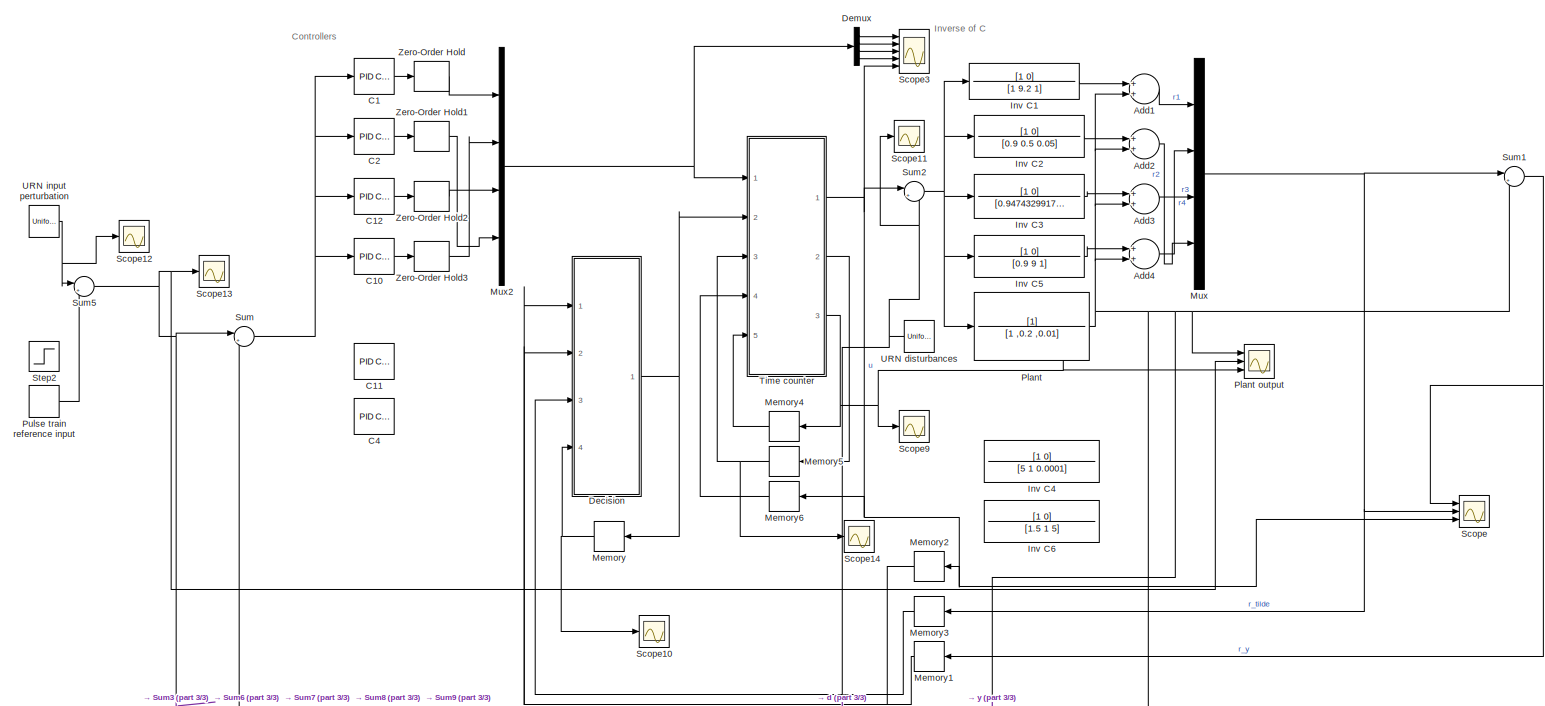
[diagram: root canvas - part 1/3, full width, top band]
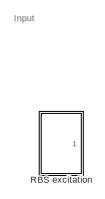
[diagram: root canvas - part 2/3, top left region]
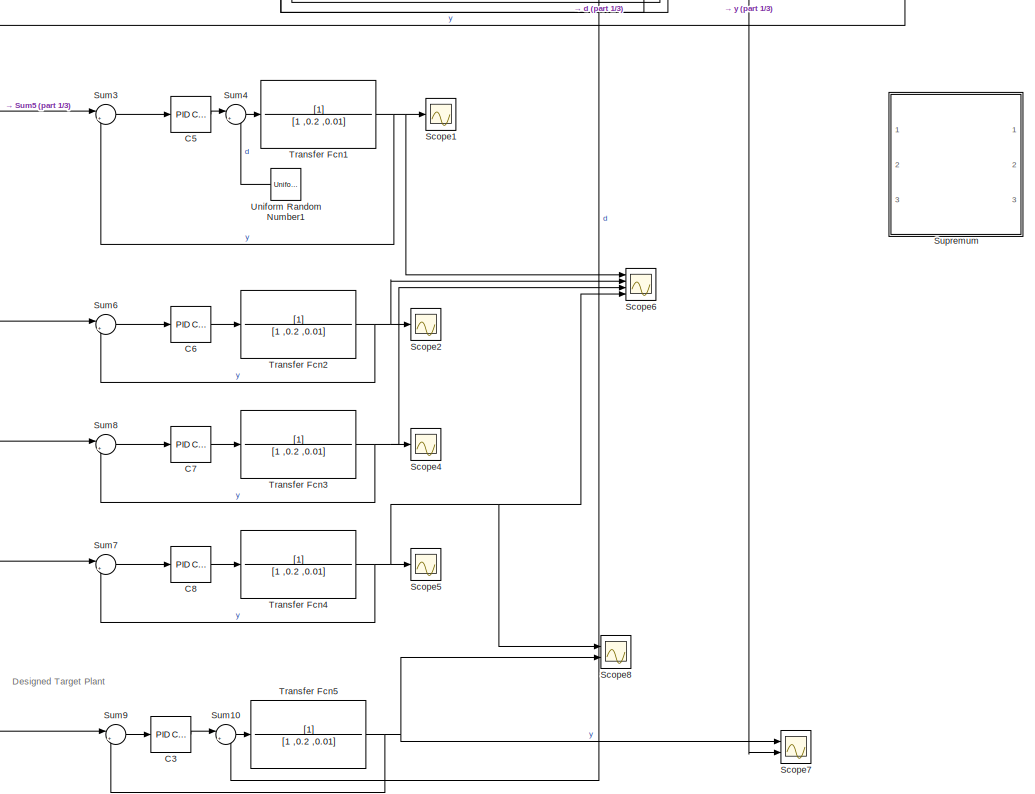
[diagram: root canvas - part 3/3, bottom center region]
MODEL slx_1310ebeed36a
KIND model
CONFIG AbsTol = auto
CONFIG EnableMultiTasking = off
CONFIG FixedStep = auto
CONFIG MaxStep = auto
CONFIG MinStep = auto
CONFIG RelTol = 1e-3
CONFIG SampleTimeConstraint = Unconstrained
CONFIG Solver = ode45
CONFIG SolverName = ode45
CONFIG StartTime = 0.0
CONFIG StopTime = 2000
BLOCK [Sum] Add1
  InputSameDT = off
  OutDataTypeStr = Inherit: Inherit via internal rule
  Ports = [2, 1]
  SaturateOnIntegerOverflow = off
BLOCK [Sum] Add2
  InputSameDT = off
  OutDataTypeStr = Inherit: Inherit via internal rule
  Ports = [2, 1]
  SaturateOnIntegerOverflow = off
BLOCK [Sum] Add3
  InputSameDT = off
  OutDataTypeStr = Inherit: Inherit via internal rule
  Ports = [2, 1]
  SaturateOnIntegerOverflow = off
BLOCK [Sum] Add4
  InputSameDT = off
  OutDataTypeStr = Inherit: Inherit via internal rule
  Ports = [2, 1]
  SaturateOnIntegerOverflow = off
BLOCK [Reference] C1  REF=simulink/Continuous/PID Controller
  Ports = [1, 1]
  SourceBlock = simulink/Continuous/PID Controller
  SourceProductBaseCode = SL
  SourceProductName = Simulink
  SourceType = PID 1dof
BLOCK [Reference] C10  REF=simulink/Continuous/PID Controller
  Ports = [1, 1]
  SourceBlock = simulink/Continuous/PID Controller
  SourceProductBaseCode = SL
  SourceProductName = Simulink
  SourceType = PID 1dof
BLOCK [Reference] C11  REF=simulink/Continuous/PID Controller
  Ports = [1, 1]
  SourceBlock = simulink/Continuous/PID Controller
  SourceProductBaseCode = SL
  SourceProductName = Simulink
  SourceType = PID 1dof
BLOCK [Reference] C12  REF=simulink/Continuous/PID Controller
  Ports = [1, 1]
  SourceBlock = simulink/Continuous/PID Controller
  SourceProductBaseCode = SL
  SourceProductName = Simulink
  SourceType = PID 1dof
BLOCK [Reference] C2  REF=simulink/Continuous/PID Controller
  Ports = [1, 1]
  SourceBlock = simulink/Continuous/PID Controller
  SourceProductBaseCode = SL
  SourceProductName = Simulink
  SourceType = PID 1dof
BLOCK [Reference] C3  REF=simulink/Continuous/PID Controller
  Ports = [1, 1]
  SourceBlock = simulink/Continuous/PID Controller
  SourceProductBaseCode = SL
  SourceProductName = Simulink
  SourceType = PID 1dof
BLOCK [Reference] C4  REF=simulink/Continuous/PID Controller
  Ports = [1, 1]
  SourceBlock = simulink/Continuous/PID Controller
  SourceProductBaseCode = SL
  SourceProductName = Simulink
  SourceType = PID 1dof
BLOCK [Reference] C5  REF=simulink/Continuous/PID Controller
  Ports = [1, 1]
  SourceBlock = simulink/Continuous/PID Controller
  SourceProductBaseCode = SL
  SourceProductName = Simulink
  SourceType = PID 1dof
BLOCK [Reference] C6  REF=simulink/Continuous/PID Controller
  Ports = [1, 1]
  SourceBlock = simulink/Continuous/PID Controller
  SourceProductBaseCode = SL
  SourceProductName = Simulink
  SourceType = PID 1dof
BLOCK [Reference] C7  REF=simulink/Continuous/PID Controller
  Ports = [1, 1]
  SourceBlock = simulink/Continuous/PID Controller
  SourceProductBaseCode = SL
  SourceProductName = Simulink
  SourceType = PID 1dof
BLOCK [Reference] C8  REF=simulink/Continuous/PID Controller
  Ports = [1, 1]
  SourceBlock = simulink/Continuous/PID Controller
  SourceProductBaseCode = SL
  SourceProductName = Simulink
  SourceType = PID 1dof
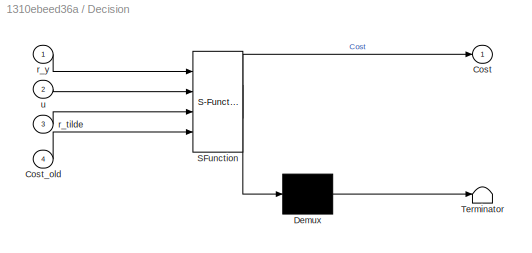
BLOCK [SubSystem] Decision
  ErrorFcn = Stateflow.Translate.translate
  PermitHierarchicalResolution = ExplicitOnly
  Ports = [4, 1]
  RequestExecContextInheritance = off
  SFBlockType = MATLAB Function
  TreatAsAtomicUnit = on
BLOCK [Demux] Decision/ Demux 
  Outputs = 1
  Ports = [1, 1]
BLOCK [S-Function] Decision/ SFunction 
  EnableBusSupport = on
  FunctionName = sf_sfun
  PortCounts = [4 2]
  Ports = [4, 2]
  SFcnIsStateOwnerBlock = off
  SFunctionDeploymentMode = off
  Tag = Stateflow S-Function 2
BLOCK [Terminator] Decision/ Terminator 
BLOCK [Outport] Decision/Cost
  IconDisplay = Port number
  VectorParamsAs1DForOutWhenUnconnected = off
BLOCK [Inport] Decision/Cost_old
  IconDisplay = Port number
  Port = 4
BLOCK [Inport] Decision/r_tilde
  IconDisplay = Port number
  Port = 3
BLOCK [Inport] Decision/r_y
  IconDisplay = Port number
BLOCK [Inport] Decision/u
  IconDisplay = Port number
  Port = 2
BLOCK [Demux] Demux
  DisplayOption = bar
  Ports = [1, 4]
BLOCK [TransferFcn] Inv C1
  Denominator = [1 9.2 1]
  Numerator = [1 0]
BLOCK [TransferFcn] Inv C2
  Denominator = [0.9 0.5 0.05]
  Numerator = [1 0]
BLOCK [TransferFcn] Inv C3
  Denominator = [0.947432991729224 0.458187006562814 0.0463882934206885]
  Numerator = [1 0]
BLOCK [TransferFcn] Inv C4
  Denominator = [5 1 0.0001]
  Numerator = [1 0]
BLOCK [TransferFcn] Inv C5
  Denominator = [0.9 9 1]
  Numerator = [1 0]
BLOCK [TransferFcn] Inv C6
  Denominator = [1.5 1 5]
  Numerator = [1 0]
BLOCK [Memory] Memory
  InheritSampleTime = on
  InitialCondition = [0 0 0 0]
  LinearizeAsDelay = on
BLOCK [Memory] Memory1
  InitialCondition = [0 0 0 0]
BLOCK [Memory] Memory2
  InheritSampleTime = on
BLOCK [Memory] Memory3
  InitialCondition = [0 0 0 0]
BLOCK [Memory] Memory4
  InheritSampleTime = on
  InitialCondition = 1
  LinearizeAsDelay = on
BLOCK [Memory] Memory5
  InheritSampleTime = on
  LinearizeAsDelay = on
BLOCK [Memory] Memory6
  InheritSampleTime = on
  LinearizeAsDelay = on
BLOCK [Mux] Mux
  DisplayOption = bar
  Ports = [4, 1]
BLOCK [Mux] Mux2
  DisplayOption = bar
  Ports = [4, 1]
BLOCK [TransferFcn] Plant
  Denominator = [1 ,0.2 ,0.01]
BLOCK [Scope] Plant output
  Floating = off
  NumInputPorts = 3
  Ports = [3]
  ScopeSpecificationString = Simulink.scopes.TimeScopeBlockCfg('CurrentConfiguration', extmgr.ConfigurationSet(extmgr.Configuration('Core','General UI',true),extmgr.Configuration('Core','Source UI',true),extmgr.Configuration('Sources','WiredSimulink',true),extmgr.Configuration('Visuals','Time Domain',true,'SerializedDisplays',{struct('MinYLimReal','-3.57154','MaxYLimReal','4.63119','YLabelReal','','MinYLimMag','0.00000','MaxY...<+1504ch>
BLOCK [DiscretePulseGenerator] Pulse train reference input
  Period = 100
  Ports = [0, 1]
  PulseType = Time based
  PulseWidth = 50
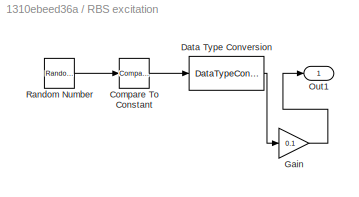
BLOCK [SubSystem] RBS excitation
  Ports = [0, 1]
  RequestExecContextInheritance = off
BLOCK [Reference] RBS excitation/Compare To Constant  REF=simulink/Logic and Bit
Operations/Compare
To Constant
  Ports = [1, 1]
  SourceBlock = simulink/Logic and Bit\nOperations/Compare\nTo Constant
  SourceProductBaseCode = SL
  SourceProductName = Simulink
  SourceType = Compare To Constant
BLOCK [DataTypeConversion] RBS excitation/Data Type Conversion
  OutDataTypeStr = double
  RndMeth = Floor
  SaturateOnIntegerOverflow = off
BLOCK [Gain] RBS excitation/Gain
  Gain = 0.1
  OutDataTypeStr = Inherit: Inherit via internal rule
  ParamDataTypeStr = Inherit: Inherit via internal rule
  SaturateOnIntegerOverflow = off
BLOCK [Outport] RBS excitation/Out1
  IconDisplay = Port number
BLOCK [RandomNumber] RBS excitation/Random Number
  Mean = 1
  SampleTime = 10
BLOCK [Scope] Scope
  Floating = off
  NumInputPorts = 3
  Ports = [3]
  ScopeSpecificationString = Simulink.scopes.TimeScopeBlockCfg('CurrentConfiguration', extmgr.ConfigurationSet(extmgr.Configuration('Core','General UI',true),extmgr.Configuration('Core','Source UI',true),extmgr.Configuration('Sources','WiredSimulink',true,'DataLoggingVariableName','ScopeData3'),extmgr.Configuration('Visuals','Time Domain',true,'SerializedDisplays',{struct('MinYLimReal','-150.73012','MaxYLimReal','150.84173','...<+1751ch>
BLOCK [Scope] Scope1
  Floating = off
  NumInputPorts = 1
  Ports = [1]
  ScopeSpecificationString = Simulink.scopes.TimeScopeBlockCfg('CurrentConfiguration', extmgr.ConfigurationSet(extmgr.Configuration('Core','General UI',true),extmgr.Configuration('Core','Source UI',true),extmgr.Configuration('Sources','WiredSimulink',true,'DataLoggingVariableName','ScopeData1'),extmgr.Configuration('Visuals','Time Domain',true,'SerializedDisplays',{struct('MinYLimReal','-1.12529','MaxYLimReal','2.14209','YLab...<+1405ch>
BLOCK [Scope] Scope10
  Floating = off
  NumInputPorts = 1
  Ports = [1]
  ScopeSpecificationString = Simulink.scopes.TimeScopeBlockCfg('CurrentConfiguration', extmgr.ConfigurationSet(extmgr.Configuration('Core','General UI',true),extmgr.Configuration('Core','Source UI',true),extmgr.Configuration('Sources','WiredSimulink',true,'DataLoggingVariableName','ScopeData2'),extmgr.Configuration('Visuals','Time Domain',true,'SerializedDisplays',{struct('MinYLimReal','-10088.19299','MaxYLimReal','90793.7368...<+1523ch>
BLOCK [Scope] Scope11
  Floating = off
  NumInputPorts = 1
  Ports = [1]
  ScopeSpecificationString = Simulink.scopes.TimeScopeBlockCfg('CurrentConfiguration', extmgr.ConfigurationSet(extmgr.Configuration('Core','General UI',true),extmgr.Configuration('Core','Source UI',true),extmgr.Configuration('Sources','WiredSimulink',true,'DataLoggingVariableName','ScopeData4'),extmgr.Configuration('Visuals','Time Domain',true,'SerializedDisplays',{struct('MinYLimReal','-0.01','MaxYLimReal','0.01111','YLabelR...<+1484ch>
BLOCK [Scope] Scope12
  Floating = off
  NumInputPorts = 1
  Ports = [1]
  ScopeSpecificationString = Simulink.scopes.TimeScopeBlockCfg('CurrentConfiguration', extmgr.ConfigurationSet(extmgr.Configuration('Core','General UI',true),extmgr.Configuration('Core','Source UI',true),extmgr.Configuration('Sources','WiredSimulink',true,'DataLoggingVariableName','ScopeData5'),extmgr.Configuration('Visuals','Time Domain',true,'SerializedDisplays',{struct('MinYLimReal','-0.05191','MaxYLimReal','0.05261','YLab...<+1511ch>
BLOCK [Scope] Scope13
  Floating = off
  NumInputPorts = 1
  Ports = [1]
  ScopeSpecificationString = Simulink.scopes.TimeScopeBlockCfg('CurrentConfiguration', extmgr.ConfigurationSet(extmgr.Configuration('Core','General UI',true),extmgr.Configuration('Core','Source UI',true),extmgr.Configuration('Sources','WiredSimulink',true,'DataLoggingVariableName','ScopeData6'),extmgr.Configuration('Visuals','Time Domain',true,'SerializedDisplays',{struct('MinYLimReal','-0.1875','MaxYLimReal','1.1875','YLabel...<+1452ch>
BLOCK [Scope] Scope14
  Floating = off
  NumInputPorts = 1
  Ports = [1]
  ScopeSpecificationString = Simulink.scopes.TimeScopeBlockCfg('CurrentConfiguration', extmgr.ConfigurationSet(extmgr.Configuration('Core','General UI',true),extmgr.Configuration('Core','Source UI',true),extmgr.Configuration('Sources','WiredSimulink',true,'DataLoggingVariableName','ScopeData7'),extmgr.Configuration('Visuals','Time Domain',true,'SerializedDisplays',{struct('MinYLimReal','-54.4625','MaxYLimReal','490.1625','YLa...<+1465ch>
BLOCK [Scope] Scope2
  Floating = off
  NumInputPorts = 1
  Ports = [1]
  ScopeSpecificationString = Simulink.scopes.TimeScopeBlockCfg('CurrentConfiguration', extmgr.ConfigurationSet(extmgr.Configuration('Core','General UI',true),extmgr.Configuration('Core','Source UI',true),extmgr.Configuration('Sources','WiredSimulink',true,'DataLoggingVariableName','ScopeData1'),extmgr.Configuration('Visuals','Time Domain',true,'SerializedDisplays',{struct('MinYLimReal','-1.13331','MaxYLimReal','2.12798','YLab...<+1405ch>
BLOCK [Scope] Scope3
  Floating = off
  NumInputPorts = 5
  Ports = [5]
  ScopeSpecificationString = Simulink.scopes.TimeScopeBlockCfg('CurrentConfiguration', extmgr.ConfigurationSet(extmgr.Configuration('Core','General UI',true),extmgr.Configuration('Core','Source UI',true),extmgr.Configuration('Sources','WiredSimulink',true,'DataLoggingVariableName','ScopeData1'),extmgr.Configuration('Visuals','Time Domain',true,'SerializedDisplays',{struct('MinYLimReal','-150.71477','MaxYLimReal','150.70356','...<+1691ch>
BLOCK [Scope] Scope4
  Floating = off
  NumInputPorts = 1
  Ports = [1]
  ScopeSpecificationString = Simulink.scopes.TimeScopeBlockCfg('CurrentConfiguration', extmgr.ConfigurationSet(extmgr.Configuration('Core','General UI',true),extmgr.Configuration('Core','Source UI',true),extmgr.Configuration('Sources','WiredSimulink',true,'DataLoggingVariableName','ScopeData2'),extmgr.Configuration('Visuals','Time Domain',true,'SerializedDisplays',{struct('MinYLimReal','-0.6192','MaxYLimReal','1.64023','YLabe...<+1403ch>
BLOCK [Scope] Scope5
  Floating = off
  NumInputPorts = 1
  Ports = [1]
  ScopeSpecificationString = Simulink.scopes.TimeScopeBlockCfg('CurrentConfiguration', extmgr.ConfigurationSet(extmgr.Configuration('Core','General UI',true),extmgr.Configuration('Core','Source UI',true),extmgr.Configuration('Sources','WiredSimulink',true,'DataLoggingVariableName','ScopeData3'),extmgr.Configuration('Visuals','Time Domain',true,'SerializedDisplays',{struct('MinYLimReal','-0.70099','MaxYLimReal','1.72305','YLab...<+1430ch>
BLOCK [Scope] Scope6
  Floating = off
  NumInputPorts = 4
  Ports = [4]
  ScopeSpecificationString = Simulink.scopes.TimeScopeBlockCfg('CurrentConfiguration', extmgr.ConfigurationSet(extmgr.Configuration('Core','General UI',true),extmgr.Configuration('Core','Source UI',true),extmgr.Configuration('Sources','WiredSimulink',true,'DataLoggingVariableName','ScopeData4'),extmgr.Configuration('Visuals','Time Domain',true,'SerializedDisplays',{struct('MinYLimReal','-0.95642','MaxYLimReal','1.96581','YLab...<+1506ch>
BLOCK [Scope] Scope7
  Floating = off
  NumInputPorts = 2
  Ports = [2]
  ScopeSpecificationString = Simulink.scopes.TimeScopeBlockCfg('CurrentConfiguration', extmgr.ConfigurationSet(extmgr.Configuration('Core','General UI',true),extmgr.Configuration('Core','Source UI',true),extmgr.Configuration('Sources','WiredSimulink',true,'DataLoggingVariableName','ScopeData5'),extmgr.Configuration('Visuals','Time Domain',true,'SerializedDisplays',{struct('MinYLimReal','-3.57154','MaxYLimReal','4.63119','YLab...<+1496ch>
BLOCK [Scope] Scope8
  Floating = off
  NumInputPorts = 2
  Ports = [2]
  ScopeSpecificationString = Simulink.scopes.TimeScopeBlockCfg('CurrentConfiguration', extmgr.ConfigurationSet(extmgr.Configuration('Core','General UI',true),extmgr.Configuration('Core','Source UI',true),extmgr.Configuration('Sources','WiredSimulink',true,'DataLoggingVariableName','ScopeData6'),extmgr.Configuration('Visuals','Time Domain',true,'SerializedDisplays',{struct('MinYLimReal','-0.67983','MaxYLimReal','1.68251','YLab...<+1459ch>
BLOCK [Scope] Scope9
  Floating = off
  NumInputPorts = 1
  Ports = [1]
  ScopeSpecificationString = Simulink.scopes.TimeScopeBlockCfg('CurrentConfiguration', extmgr.ConfigurationSet(extmgr.Configuration('Core','General UI',true),extmgr.Configuration('Core','Source UI',true),extmgr.Configuration('Sources','WiredSimulink',true,'DataLoggingVariableName','ScopeData1'),extmgr.Configuration('Visuals','Time Domain',true,'SerializedDisplays',{struct('MinYLimReal','0.92256','MaxYLimReal','4.07917','YLabe...<+1470ch>
BLOCK [Step] Step2
  SampleTime = 0
BLOCK [Sum] Sum
  IconShape = round
  InputSameDT = off
  Inputs = |+-
  OutDataTypeStr = Inherit: Inherit via internal rule
  Ports = [2, 1]
  SaturateOnIntegerOverflow = off
BLOCK [Sum] Sum1
  IconShape = round
  InputSameDT = off
  Inputs = |+-
  OutDataTypeStr = Inherit: Inherit via internal rule
  Ports = [2, 1]
  SaturateOnIntegerOverflow = off
BLOCK [Sum] Sum10
  IconShape = round
  InputSameDT = off
  Inputs = |++
  OutDataTypeStr = Inherit: Inherit via internal rule
  Ports = [2, 1]
  SaturateOnIntegerOverflow = off
BLOCK [Sum] Sum2
  IconShape = round
  InputSameDT = off
  Inputs = |++
  OutDataTypeStr = Inherit: Inherit via internal rule
  Ports = [2, 1]
  SaturateOnIntegerOverflow = off
BLOCK [Sum] Sum3
  IconShape = round
  InputSameDT = off
  Inputs = |+-
  OutDataTypeStr = Inherit: Inherit via internal rule
  Ports = [2, 1]
  SaturateOnIntegerOverflow = off
BLOCK [Sum] Sum4
  IconShape = round
  InputSameDT = off
  Inputs = |++
  OutDataTypeStr = Inherit: Inherit via internal rule
  Ports = [2, 1]
  SaturateOnIntegerOverflow = off
BLOCK [Sum] Sum5
  IconShape = round
  InputSameDT = off
  Inputs = |++
  OutDataTypeStr = Inherit: Inherit via internal rule
  Ports = [2, 1]
  SaturateOnIntegerOverflow = off
BLOCK [Sum] Sum6
  IconShape = round
  InputSameDT = off
  Inputs = |+-
  OutDataTypeStr = Inherit: Inherit via internal rule
  Ports = [2, 1]
  SaturateOnIntegerOverflow = off
BLOCK [Sum] Sum7
  IconShape = round
  InputSameDT = off
  Inputs = |+-
  OutDataTypeStr = Inherit: Inherit via internal rule
  Ports = [2, 1]
  SaturateOnIntegerOverflow = off
BLOCK [Sum] Sum8
  IconShape = round
  InputSameDT = off
  Inputs = |+-
  OutDataTypeStr = Inherit: Inherit via internal rule
  Ports = [2, 1]
  SaturateOnIntegerOverflow = off
BLOCK [Sum] Sum9
  IconShape = round
  InputSameDT = off
  Inputs = |+-
  OutDataTypeStr = Inherit: Inherit via internal rule
  Ports = [2, 1]
  SaturateOnIntegerOverflow = off
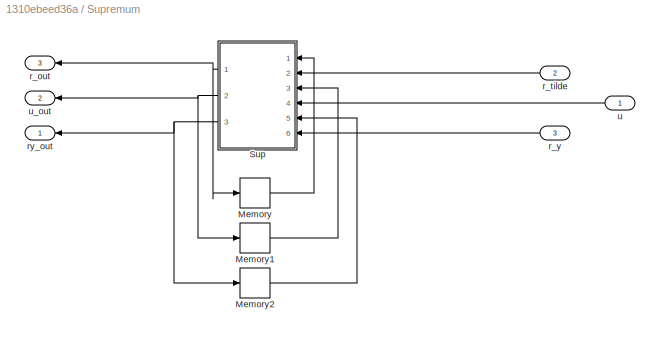
BLOCK [SubSystem] Supremum
  Commented = on
  Ports = [3, 3]
  RequestExecContextInheritance = off
BLOCK [Memory] Supremum/Memory
  InitialCondition = [0 0 0 0]
BLOCK [Memory] Supremum/Memory1
BLOCK [Memory] Supremum/Memory2
  InitialCondition = [0 0 0 0]
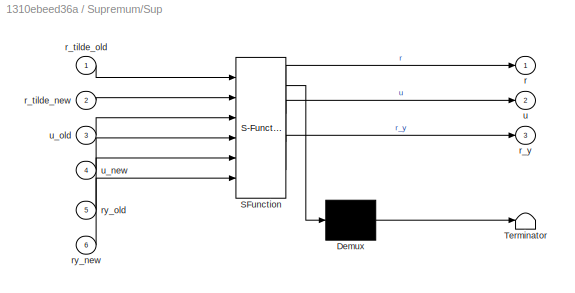
BLOCK [SubSystem] Supremum/Sup
  ErrorFcn = Stateflow.Translate.translate
  PermitHierarchicalResolution = ExplicitOnly
  Ports = [6, 3]
  RequestExecContextInheritance = off
  SFBlockType = MATLAB Function
  TreatAsAtomicUnit = on
BLOCK [Demux] Supremum/Sup/ Demux 
  Outputs = 1
  Ports = [1, 1]
BLOCK [S-Function] Supremum/Sup/ SFunction 
  EnableBusSupport = on
  FunctionName = sf_sfun
  PortCounts = [6 4]
  Ports = [6, 4]
  SFcnIsStateOwnerBlock = off
  SFunctionDeploymentMode = off
  Tag = Stateflow S-Function 1
BLOCK [Terminator] Supremum/Sup/ Terminator 
BLOCK [Outport] Supremum/Sup/r
  IconDisplay = Port number
  VectorParamsAs1DForOutWhenUnconnected = off
BLOCK [Inport] Supremum/Sup/r_tilde_new
  IconDisplay = Port number
  Port = 2
BLOCK [Inport] Supremum/Sup/r_tilde_old
  IconDisplay = Port number
BLOCK [Outport] Supremum/Sup/r_y
  IconDisplay = Port number
  Port = 3
  VectorParamsAs1DForOutWhenUnconnected = off
BLOCK [Inport] Supremum/Sup/ry_new
  IconDisplay = Port number
  Port = 6
BLOCK [Inport] Supremum/Sup/ry_old
  IconDisplay = Port number
  Port = 5
BLOCK [Outport] Supremum/Sup/u
  IconDisplay = Port number
  Port = 2
  VectorParamsAs1DForOutWhenUnconnected = off
BLOCK [Inport] Supremum/Sup/u_new
  IconDisplay = Port number
  Port = 4
BLOCK [Inport] Supremum/Sup/u_old
  IconDisplay = Port number
  Port = 3
BLOCK [Outport] Supremum/r_out
  IconDisplay = Port number
  Port = 3
  PortDimensions = 4
  VectorParamsAs1DForOutWhenUnconnected = off
BLOCK [Inport] Supremum/r_tilde
  IconDisplay = Port number
  Port = 2
BLOCK [Inport] Supremum/r_y
  IconDisplay = Port number
  Port = 3
BLOCK [Outport] Supremum/ry_out
  IconDisplay = Port number
  PortDimensions = 4
  VectorParamsAs1DForOutWhenUnconnected = off
BLOCK [Inport] Supremum/u
  IconDisplay = Port number
BLOCK [Outport] Supremum/u_out
  IconDisplay = Port number
  Port = 2
  VectorParamsAs1DForOutWhenUnconnected = off
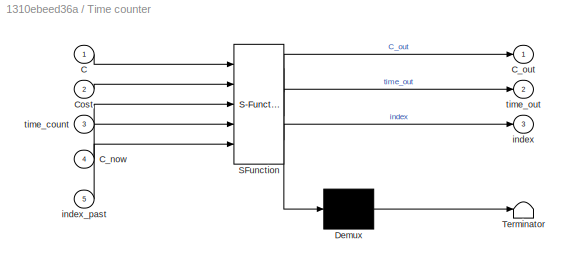
BLOCK [SubSystem] Time counter
  ErrorFcn = Stateflow.Translate.translate
  PermitHierarchicalResolution = ExplicitOnly
  Ports = [5, 3]
  RequestExecContextInheritance = off
  SFBlockType = MATLAB Function
  TreatAsAtomicUnit = on
BLOCK [Demux] Time counter/ Demux 
  Outputs = 1
  Ports = [1, 1]
BLOCK [S-Function] Time counter/ SFunction 
  EnableBusSupport = on
  FunctionName = sf_sfun
  PortCounts = [5 4]
  Ports = [5, 4]
  SFcnIsStateOwnerBlock = off
  SFunctionDeploymentMode = off
  Tag = Stateflow S-Function 6
BLOCK [Terminator] Time counter/ Terminator 
BLOCK [Inport] Time counter/C
  IconDisplay = Port number
BLOCK [Inport] Time counter/C_now
  IconDisplay = Port number
  Port = 4
BLOCK [Outport] Time counter/C_out
  IconDisplay = Port number
  VectorParamsAs1DForOutWhenUnconnected = off
BLOCK [Inport] Time counter/Cost
  IconDisplay = Port number
  Port = 2
BLOCK [Outport] Time counter/index
  IconDisplay = Port number
  Port = 3
  VectorParamsAs1DForOutWhenUnconnected = off
BLOCK [Inport] Time counter/index_past
  IconDisplay = Port number
  Port = 5
BLOCK [Inport] Time counter/time_count
  IconDisplay = Port number
  Port = 3
BLOCK [Outport] Time counter/time_out
  IconDisplay = Port number
  Port = 2
  VectorParamsAs1DForOutWhenUnconnected = off
BLOCK [TransferFcn] Transfer Fcn1
  Denominator = [1 ,0.2 ,0.01]
BLOCK [TransferFcn] Transfer Fcn2
  Denominator = [1 ,0.2 ,0.01]
BLOCK [TransferFcn] Transfer Fcn3
  Denominator = [1 ,0.2 ,0.01]
BLOCK [TransferFcn] Transfer Fcn4
  Denominator = [1 ,0.2 ,0.01]
BLOCK [TransferFcn] Transfer Fcn5
  Denominator = [1 ,0.2 ,0.01]
BLOCK [UniformRandomNumber] URN disturbances
  Maximum = 0.2
  Minimum = -0.2
  SampleTime = 0.1
BLOCK [UniformRandomNumber] URN input perturbation
  Maximum = 0.05
  Minimum = -0.05
  SampleTime = 0.1
BLOCK [UniformRandomNumber] Uniform Random Number1
  Maximum = 0.05
  Minimum = -0.05
  SampleTime = 0.1
BLOCK [ZeroOrderHold] Zero-Order Hold
  SampleTime = 0.1
BLOCK [ZeroOrderHold] Zero-Order Hold1
  SampleTime = 0.1
BLOCK [ZeroOrderHold] Zero-Order Hold2
  SampleTime = 0.1
BLOCK [ZeroOrderHold] Zero-Order Hold3
  SampleTime = 0.1
ANNOTATION (root): Controllers
ANNOTATION (root): Designed Target Plant
ANNOTATION (root): Input
ANNOTATION (root): Inverse of C
LINE Add1:1 -> Mux:1
LINE Add2:1 -> Mux:4
LINE Add3:1 -> Mux:3
LINE Add4:1 -> Mux:2
LINE C10:1 -> Zero-Order Hold3:1
LINE C12:1 -> Zero-Order Hold2:1
LINE C1:1 -> Zero-Order Hold:1
LINE C2:1 -> Zero-Order Hold1:1
LINE C3:1 -> Sum10:1
LINE C5:1 -> Sum4:1
LINE C6:1 -> Transfer Fcn2:1
LINE C7:1 -> Transfer Fcn3:1
LINE C8:1 -> Transfer Fcn4:1
NET Decision:1 -> Memory:1, Time counter:2
LINE Demux:1 -> Scope3:1
LINE Demux:2 -> Scope3:2
LINE Demux:3 -> Scope3:3
LINE Demux:4 -> Scope3:4
LINE Inv C1:1 -> Add1:1
LINE Inv C2:1 -> Add2:1
LINE Inv C3:1 -> Add3:1
LINE Inv C5:1 -> Add4:1
LINE Memory1:1 -> Decision:1
LINE Memory2:1 -> Decision:2
LINE Memory3:1 -> Decision:3
LINE Memory4:1 -> Time counter:5
NET Memory5:1 -> Scope14:1, Time counter:3
LINE Memory6:1 -> Time counter:4
NET Memory:1 -> Decision:4, Scope10:1
NET Mux2:1 -> Demux:1, Time counter:1
NET Mux:1 -> Memory3:1, Scope:2, Sum1:1
NET Plant:1 -> Add1:2, Add2:2, Add3:2, Add4:2, Plant output:1, Scope7:2, Sum1:2, Sum:2
LINE Pulse train reference input:1 -> Sum5:2
LINE RBS excitation/Compare To Constant:1 -> RBS excitation/Data Type Conversion:1
LINE RBS excitation/Data Type Conversion:1 -> RBS excitation/Gain:1
LINE RBS excitation/Gain:1 -> RBS excitation/Out1:1
LINE RBS excitation/Random Number:1 -> RBS excitation/Compare To Constant:1
LINE Sum10:1 -> Transfer Fcn5:1
NET Sum1:1 -> Memory1:1, Scope:1
NET Sum2:1 -> Inv C1:1, Inv C2:1, Inv C3:1, Inv C5:1, Plant:1
LINE Sum3:1 -> C5:1
LINE Sum4:1 -> Transfer Fcn1:1
NET Sum5:1 -> Plant output:2, Scope13:1, Sum3:1, Sum6:1, Sum7:1, Sum8:1, Sum9:1, Sum:1
LINE Sum6:1 -> C6:1
LINE Sum7:1 -> C8:1
LINE Sum8:1 -> C7:1
LINE Sum9:1 -> C3:1
NET Sum:1 -> C10:1, C12:1, C1:1, C2:1
LINE Supremum/Memory1:1 -> Supremum/Sup:3
LINE Supremum/Memory2:1 -> Supremum/Sup:5
LINE Supremum/Memory:1 -> Supremum/Sup:1
NET Supremum/Sup:1 -> Supremum/Memory:1, Supremum/r_out:1
NET Supremum/Sup:2 -> Supremum/Memory1:1, Supremum/u_out:1
NET Supremum/Sup:3 -> Supremum/Memory2:1, Supremum/ry_out:1
LINE Supremum/r_tilde:1 -> Supremum/Sup:2
LINE Supremum/r_y:1 -> Supremum/Sup:6
LINE Supremum/u:1 -> Supremum/Sup:4
NET Time counter:1 -> Memory2:1, Memory6:1, Scope3:5, Scope:3, Sum2:1
LINE Time counter:2 -> Memory5:1
NET Time counter:3 -> Memory4:1, Plant output:3, Scope9:1
NET Transfer Fcn1:1 -> Scope1:1, Scope6:1, Sum3:2
NET Transfer Fcn2:1 -> Scope2:1, Scope6:2, Sum6:2
NET Transfer Fcn3:1 -> Scope4:1, Scope6:3, Sum8:2
NET Transfer Fcn4:1 -> Scope5:1, Scope6:4, Scope8:1, Sum7:2
NET Transfer Fcn5:1 -> Scope7:1, Scope8:2, Sum9:2
NET URN disturbances:1 -> Scope11:1, Sum10:2, Sum2:2
NET URN input perturbation:1 -> Scope12:1, Sum5:1
LINE Uniform Random Number1:1 -> Sum4:2
LINE Zero-Order Hold1:1 -> Mux2:4
LINE Zero-Order Hold2:1 -> Mux2:3
LINE Zero-Order Hold3:1 -> Mux2:2
LINE Zero-Order Hold:1 -> Mux2:1
note: NET lines group one-source signal fan-out (src -> all destinations, sorted); 1:1 wires keep LINE
CHART Supremum/Sup states=1 transitions=1
  STATE_LABEL 'eML_blk_kernel()'
  STATE_LABEL 'SCRIPT:\nfunction [r, u, r_y] = fcn(r_tilde_old, r_tilde_new, u_old, u_new, ry_old, ry_new)\n\n%% U\nif abs(u_new) > abs(u_old)\n    u = u_new;\nelse\n    u = u_old;\nend\n\n%% Error\nif abs(ry_old) > abs(ry_new)\n    r_y = ry_old;\nelse\n    r_y = ry_new;\nend\n\n%% R_tilde\nif abs(r_tilde_old) > abs(r_tilde_new)\n    r = r_tilde_old;\nelse\n    r = r_tilde_new;\nend\n\nend\n'
CHART Decision states=1 transitions=1
  STATE_LABEL 'eML_blk_kernel()'
  STATE_LABEL 'SCRIPT:\nfunction Cost  = fcn(r_y, u, r_tilde, Cost_old)\n% Make a decision of which controller should be used given situation\n% Constants\na = 1;\nw1 = 0.00001;\nw2 = 1;\n\nCost = [0 0 0 0];\n% Calculate the cost of each one\nfor i = 1:1:4\n    V = (u^2 + r_y(i)^2) / (r_tilde(i)^2 + a);\n    %V = sqrt(w1*u^2 + w2*r_y(i)^2) / abs(r_tilde(i));\n  \n    Cost(i) = V;\n    if V > Cost_old(i) \n        Cost(i) = V;\n ...<+130ch>'
CHART Time counter states=1 transitions=1
  STATE_LABEL 'eML_blk_kernel()'
  STATE_LABEL 'SCRIPT:\nfunction [C_out, time_out,index] = fcn(C, Cost, time_count, C_now, index_past)\n%C = [C1 C2 C3 C4]; %controllers\ndt = 0.1;\nindex = index_past; \ne = 1;\n\nif time_count > 0.1\n    %Cost = [Cost1 Cost2 Cost3 Cost4];\n    [minimum, index] = min(Cost);\n%      if Cost(index_past) > Cost(index)+e\n     C_out = C(index);\n%      else\n%          C_out = C_now;\n%     \n%      end\n    \nelse\n    C_out = C_no...<+94ch>'
